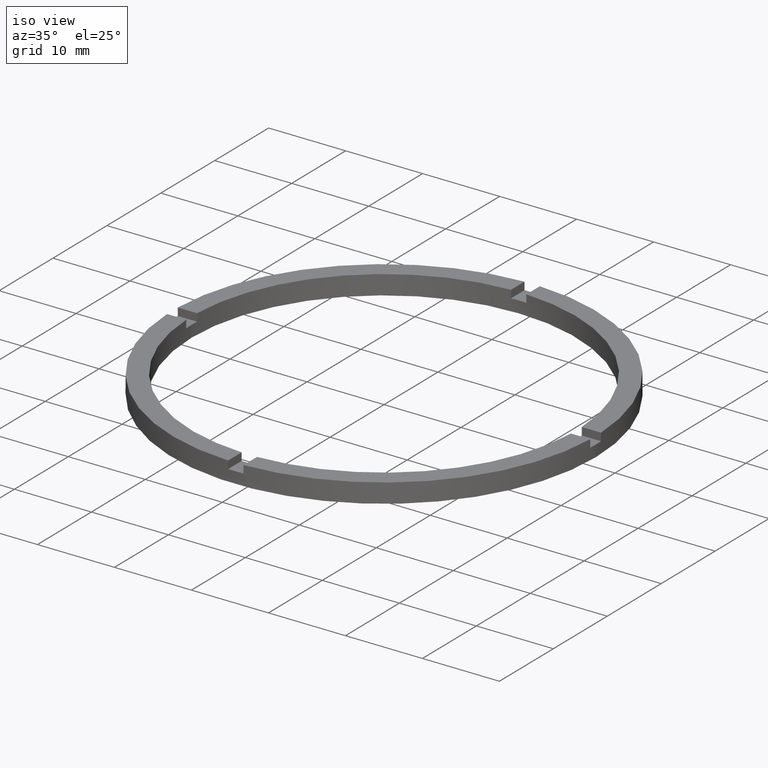
[diagram: clean part render]
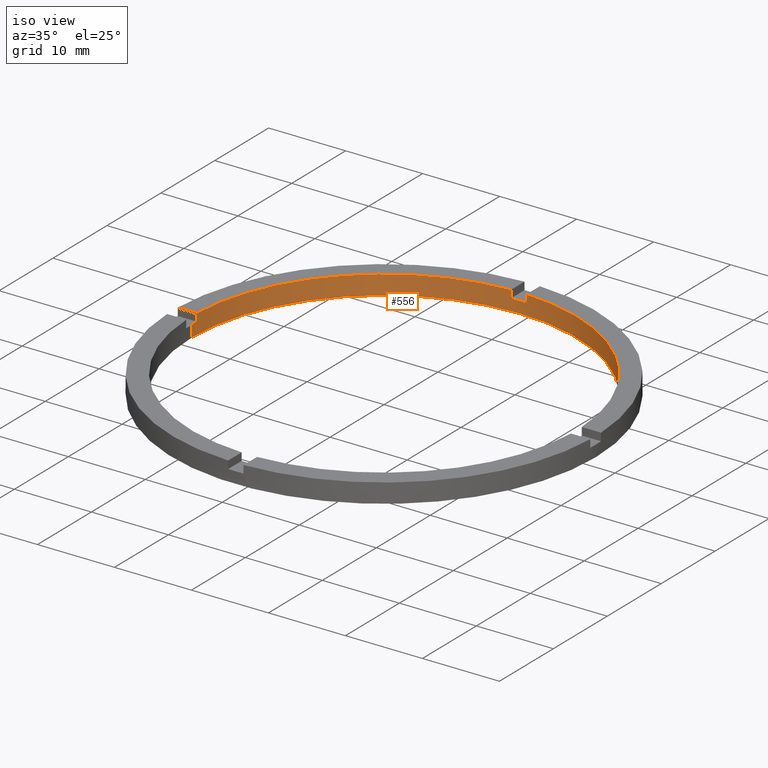
[diagram: same view with one face highlighted and labeled with its STEP entity id]
A machine part, iso view. The second image highlights one B-rep face of the part: STEP entity #556.
In plain terms, the highlighted cylindrical surface (partial cylindrical patch) has radius 25 mm, axis along (-0, -0, -1).
Its self-contained STEP definition (entity closure, byte-faithful):
#8 = AXIS2_PLACEMENT_3D ( 'NONE', #655, #257, #367 ) ;
#22 = DIRECTION ( 'NONE',  ( -0.000000000000000000, -0.000000000000000000, -1.000000000000000000 ) ) ;
#23 = CARTESIAN_POINT ( 'NONE',  ( -24.97999199359359679, 0.9999999999999735767, 2.500000000000000000 ) ) ;
#35 = AXIS2_PLACEMENT_3D ( 'NONE', #435, #440, #227 ) ;
#41 = CARTESIAN_POINT ( 'NONE',  ( -24.97999199359359679, 0.9999999999999735767, 1.500000000000000000 ) ) ;
#45 = DIRECTION ( 'NONE',  ( 1.000000000000000000, 0.000000000000000000, 0.000000000000000000 ) ) ;
#52 = EDGE_CURVE ( 'NONE', #713, #687, #65, .T. ) ;
#59 = AXIS2_PLACEMENT_3D ( 'NONE', #544, #596, #709 ) ;
#65 = LINE ( 'NONE', #615, #334 ) ;
#66 = CIRCLE ( 'NONE', #8, 25.00000000000000000 ) ;
#68 = CIRCLE ( 'NONE', #566, 25.00000000000000000 ) ;
#74 = VERTEX_POINT ( 'NONE', #668 ) ;
#83 = DIRECTION ( 'NONE',  ( -0.000000000000000000, -0.000000000000000000, -1.000000000000000000 ) ) ;
#90 = CARTESIAN_POINT ( 'NONE',  ( 0.000000000000000000, 0.000000000000000000, 1.500000000000000000 ) ) ;
#154 = VECTOR ( 'NONE', #258, 1000.000000000000000 ) ;
#164 = CARTESIAN_POINT ( 'NONE',  ( 25.00000000000000000, 3.061616997868383043E-15, 0.000000000000000000 ) ) ;
#166 = LINE ( 'NONE', #23, #154 ) ;
#175 = EDGE_CURVE ( 'NONE', #463, #644, #347, .T. ) ;
#182 = VERTEX_POINT ( 'NONE', #609 ) ;
#194 = ORIENTED_EDGE ( 'NONE', *, *, #282, .T. ) ;
#196 = VERTEX_POINT ( 'NONE', #422 ) ;
#213 = EDGE_CURVE ( 'NONE', #694, #219, #68, .T. ) ;
#219 = VERTEX_POINT ( 'NONE', #391 ) ;
#226 = CIRCLE ( 'NONE', #35, 25.00000000000000000 ) ;
#227 = DIRECTION ( 'NONE',  ( 1.000000000000000000, 0.000000000000000000, 0.000000000000000000 ) ) ;
#230 = AXIS2_PLACEMENT_3D ( 'NONE', #90, #672, #599 ) ;
#233 = EDGE_CURVE ( 'NONE', #438, #182, #333, .T. ) ;
#257 = DIRECTION ( 'NONE',  ( 0.000000000000000000, 0.000000000000000000, 1.000000000000000000 ) ) ;
#258 = DIRECTION ( 'NONE',  ( 0.000000000000000000, 0.000000000000000000, 1.000000000000000000 ) ) ;
#282 = EDGE_CURVE ( 'NONE', #463, #74, #572, .T. ) ;
#305 = AXIS2_PLACEMENT_3D ( 'NONE', #573, #520, #45 ) ;
#317 = EDGE_CURVE ( 'NONE', #713, #336, #66, .T. ) ;
#329 = ORIENTED_EDGE ( 'NONE', *, *, #662, .F. ) ;
#333 = LINE ( 'NONE', #620, #583 ) ;
#334 = VECTOR ( 'NONE', #83, 1000.000000000000000 ) ;
#336 = VERTEX_POINT ( 'NONE', #718 ) ;
#341 = ORIENTED_EDGE ( 'NONE', *, *, #410, .F. ) ;
#347 = LINE ( 'NONE', #542, #568 ) ;
#354 = ORIENTED_EDGE ( 'NONE', *, *, #317, .T. ) ;
#367 = DIRECTION ( 'NONE',  ( 1.000000000000000000, 0.000000000000000000, 0.000000000000000000 ) ) ;
#369 = CARTESIAN_POINT ( 'NONE',  ( 0.000000000000000000, 0.000000000000000000, 2.500000000000000000 ) ) ;
#387 = AXIS2_PLACEMENT_3D ( 'NONE', #563, #22, #675 ) ;
#391 = CARTESIAN_POINT ( 'NONE',  ( 0.9999999999999735767, 24.97999199359359679, 2.500000000000000000 ) ) ;
#396 = CARTESIAN_POINT ( 'NONE',  ( 24.97999199359360034, 0.9999999999998430145, 2.500000000000000000 ) ) ;
#403 = ORIENTED_EDGE ( 'NONE', *, *, #446, .F. ) ;
#408 = ORIENTED_EDGE ( 'NONE', *, *, #175, .F. ) ;
#410 = EDGE_CURVE ( 'NONE', #683, #336, #166, .T. ) ;
#414 = DIRECTION ( 'NONE',  ( 0.000000000000000000, 0.000000000000000000, 1.000000000000000000 ) ) ;
#422 = CARTESIAN_POINT ( 'NONE',  ( 0.9999999999999735767, 24.97999199359359679, 1.500000000000000000 ) ) ;
#424 = VECTOR ( 'NONE', #445, 1000.000000000000000 ) ;
#435 = CARTESIAN_POINT ( 'NONE',  ( 0.000000000000000000, 0.000000000000000000, 1.500000000000000000 ) ) ;
#438 = VERTEX_POINT ( 'NONE', #757 ) ;
#440 = DIRECTION ( 'NONE',  ( 0.000000000000000000, -0.000000000000000000, 1.000000000000000000 ) ) ;
#445 = DIRECTION ( 'NONE',  ( 0.000000000000000000, 0.000000000000000000, 1.000000000000000000 ) ) ;
#446 = EDGE_CURVE ( 'NONE', #196, #219, #657, .T. ) ;
#447 = ORIENTED_EDGE ( 'NONE', *, *, #233, .T. ) ;
#452 = CARTESIAN_POINT ( 'NONE',  ( 25.00000000000000000, 3.061616997868383043E-15, 1.500000000000000000 ) ) ;
#455 = ORIENTED_EDGE ( 'NONE', *, *, #52, .F. ) ;
#461 = EDGE_CURVE ( 'NONE', #196, #687, #226, .T. ) ;
#463 = VERTEX_POINT ( 'NONE', #452 ) ;
#467 = ORIENTED_EDGE ( 'NONE', *, *, #213, .T. ) ;
#472 = DIRECTION ( 'NONE',  ( -0.000000000000000000, -0.000000000000000000, -1.000000000000000000 ) ) ;
#474 = EDGE_LOOP ( 'NONE', ( #408, #194, #740, #467, #403, #603, #455, #354, #341, #739, #447, #329 ) ) ;
#475 = LINE ( 'NONE', #535, #499 ) ;
#489 = DIRECTION ( 'NONE',  ( -0.000000000000000000, -0.000000000000000000, -1.000000000000000000 ) ) ;
#499 = VECTOR ( 'NONE', #489, 1000.000000000000000 ) ;
#520 = DIRECTION ( 'NONE',  ( 0.000000000000000000, 0.000000000000000000, 1.000000000000000000 ) ) ;
#535 = CARTESIAN_POINT ( 'NONE',  ( 24.97999199359360034, 0.9999999999998430145, 2.500000000000000000 ) ) ;
#542 = CARTESIAN_POINT ( 'NONE',  ( 25.00000000000000000, 3.061616997868383043E-15, 2.500000000000000000 ) ) ;
#544 = CARTESIAN_POINT ( 'NONE',  ( 0.000000000000000000, 0.000000000000000000, 0.000000000000000000 ) ) ;
#556 = ADVANCED_FACE ( 'NONE', ( #738 ), #759, .F. ) ;
#562 = DIRECTION ( 'NONE',  ( 1.000000000000000000, 0.000000000000000000, 0.000000000000000000 ) ) ;
#563 = CARTESIAN_POINT ( 'NONE',  ( 0.000000000000000000, 0.000000000000000000, 2.500000000000000000 ) ) ;
#566 = AXIS2_PLACEMENT_3D ( 'NONE', #369, #414, #562 ) ;
#568 = VECTOR ( 'NONE', #601, 1000.000000000000000 ) ;
#572 = CIRCLE ( 'NONE', #230, 25.00000000000000000 ) ;
#573 = CARTESIAN_POINT ( 'NONE',  ( 0.000000000000000000, 0.000000000000000000, 1.500000000000000000 ) ) ;
#583 = VECTOR ( 'NONE', #472, 1000.000000000000000 ) ;
#596 = DIRECTION ( 'NONE',  ( 0.000000000000000000, 0.000000000000000000, 1.000000000000000000 ) ) ;
#599 = DIRECTION ( 'NONE',  ( 1.000000000000000000, 0.000000000000000000, 0.000000000000000000 ) ) ;
#601 = DIRECTION ( 'NONE',  ( -0.000000000000000000, -0.000000000000000000, -1.000000000000000000 ) ) ;
#603 = ORIENTED_EDGE ( 'NONE', *, *, #461, .T. ) ;
#609 = CARTESIAN_POINT ( 'NONE',  ( -25.00000000000000000, 0.000000000000000000, 0.000000000000000000 ) ) ;
#615 = CARTESIAN_POINT ( 'NONE',  ( -1.000000000000026423, 24.97999199359359679, 2.500000000000000000 ) ) ;
#620 = CARTESIAN_POINT ( 'NONE',  ( -25.00000000000000000, 0.000000000000000000, 2.500000000000000000 ) ) ;
#631 = CARTESIAN_POINT ( 'NONE',  ( -1.000000000000026423, 24.97999199359359679, 1.500000000000000000 ) ) ;
#637 = EDGE_CURVE ( 'NONE', #694, #74, #475, .T. ) ;
#644 = VERTEX_POINT ( 'NONE', #164 ) ;
#655 = CARTESIAN_POINT ( 'NONE',  ( 0.000000000000000000, 0.000000000000000000, 2.500000000000000000 ) ) ;
#657 = LINE ( 'NONE', #685, #424 ) ;
#662 = EDGE_CURVE ( 'NONE', #644, #182, #756, .T. ) ;
#668 = CARTESIAN_POINT ( 'NONE',  ( 24.97999199359360034, 0.9999999999998430145, 1.500000000000000000 ) ) ;
#672 = DIRECTION ( 'NONE',  ( 0.000000000000000000, 0.000000000000000000, 1.000000000000000000 ) ) ;
#675 = DIRECTION ( 'NONE',  ( -1.000000000000000000, 0.000000000000000000, 0.000000000000000000 ) ) ;
#683 = VERTEX_POINT ( 'NONE', #41 ) ;
#685 = CARTESIAN_POINT ( 'NONE',  ( 0.9999999999999735767, 24.97999199359359679, 2.500000000000000000 ) ) ;
#687 = VERTEX_POINT ( 'NONE', #631 ) ;
#694 = VERTEX_POINT ( 'NONE', #396 ) ;
#704 = CARTESIAN_POINT ( 'NONE',  ( -1.000000000000026423, 24.97999199359359679, 2.500000000000000000 ) ) ;
#709 = DIRECTION ( 'NONE',  ( 1.000000000000000000, 0.000000000000000000, 0.000000000000000000 ) ) ;
#713 = VERTEX_POINT ( 'NONE', #704 ) ;
#718 = CARTESIAN_POINT ( 'NONE',  ( -24.97999199359359679, 0.9999999999999735767, 2.500000000000000000 ) ) ;
#736 = EDGE_CURVE ( 'NONE', #683, #438, #768, .T. ) ;
#738 = FACE_OUTER_BOUND ( 'NONE', #474, .T. ) ;
#739 = ORIENTED_EDGE ( 'NONE', *, *, #736, .T. ) ;
#740 = ORIENTED_EDGE ( 'NONE', *, *, #637, .F. ) ;
#756 = CIRCLE ( 'NONE', #59, 25.00000000000000000 ) ;
#757 = CARTESIAN_POINT ( 'NONE',  ( -25.00000000000000000, 0.000000000000000000, 1.500000000000000000 ) ) ;
#759 = CYLINDRICAL_SURFACE ( 'NONE', #387, 25.00000000000000000 ) ;
#768 = CIRCLE ( 'NONE', #305, 25.00000000000000000 ) ;